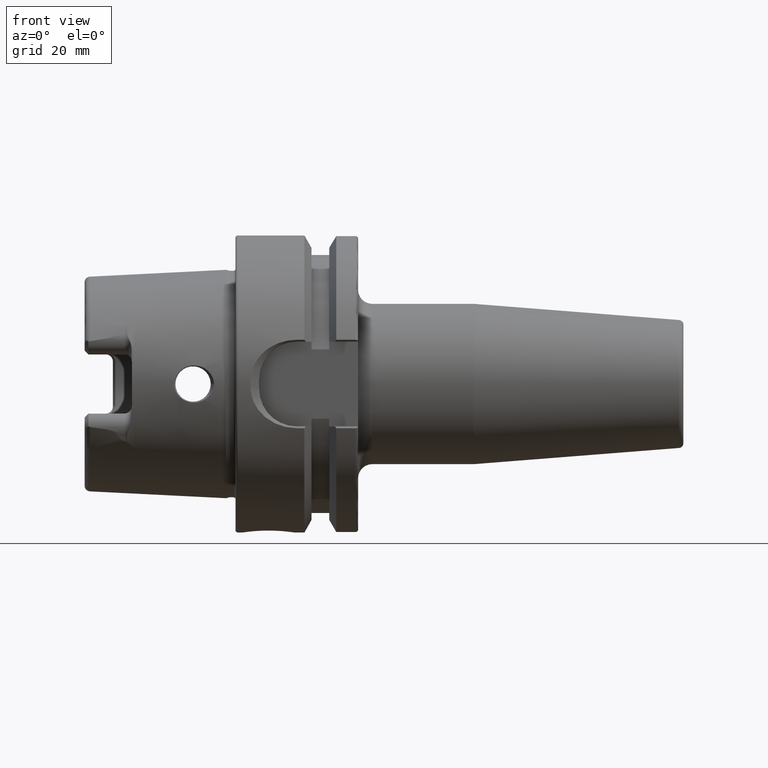
[diagram: clean part render]
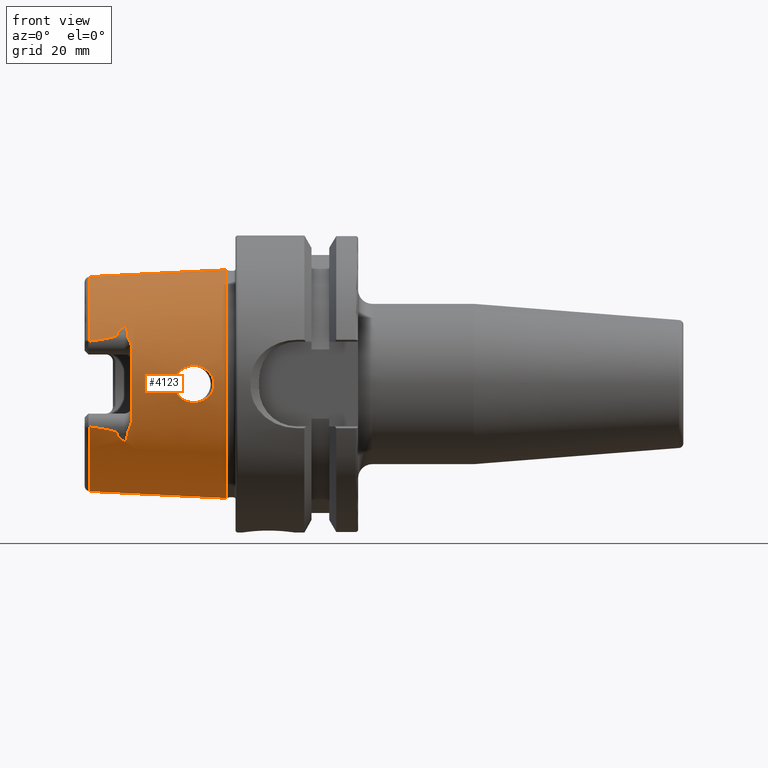
[diagram: same view with one face highlighted and labeled with its STEP entity id]
A machine part, front view. The second image highlights one B-rep face of the part: STEP entity #4123.
In plain terms, the highlighted conical surface has half-angle 2.868 deg.
Its self-contained STEP definition (entity closure, byte-faithful):
#1059=CARTESIAN_POINT('',(-3.086004333271E1,0.E0,0.E0));
#1060=DIRECTION('',(-1.E0,0.E0,0.E0));
#1061=DIRECTION('',(0.E0,0.E0,-1.E0));
#1062=AXIS2_PLACEMENT_3D('',#1059,#1060,#1061);
#1064=CARTESIAN_POINT('',(-3.086004333271E1,-2.086981840766E1,
-9.117659021249E0));
#1065=CARTESIAN_POINT('',(-3.065605186921E1,-2.087009790144E1,
-9.142546682600E0));
#1066=CARTESIAN_POINT('',(-3.026548971795E1,-2.087000011471E1,
-9.191475209956E0));
#1067=CARTESIAN_POINT('',(-2.973365321821E1,-2.086810691684E1,
-9.261644143754E0));
#1068=CARTESIAN_POINT('',(-2.925038551401E1,-2.086470072146E1,
-9.328786458642E0));
#1069=CARTESIAN_POINT('',(-2.880157988887E1,-2.085984936823E1,
-9.394516747198E0));
#1070=CARTESIAN_POINT('',(-2.838907941827E1,-2.085367010435E1,
-9.458361489324E0));
#1071=CARTESIAN_POINT('',(-2.802099682424E1,-2.084652664288E1,
-9.518574595620E0));
#1072=CARTESIAN_POINT('',(-2.767812179380E1,-2.083824707065E1,
-9.577892562152E0));
#1073=CARTESIAN_POINT('',(-2.735909724315E1,-2.082880059047E1,
-9.636540338401E0));
#1074=CARTESIAN_POINT('',(-2.707640752188E1,-2.081875776007E1,
-9.691819563709E0));
#1075=CARTESIAN_POINT('',(-2.681109569702E1,-2.080761261851E1,
-9.747101291047E0));
#1076=CARTESIAN_POINT('',(-2.656858158621E1,-2.079554827328E1,
-9.801340213004E0));
#1077=CARTESIAN_POINT('',(-2.635507856236E1,-2.078317780740E1,
-9.852543087215E0));
#1078=CARTESIAN_POINT('',(-2.614343140954E1,-2.076877229942E1,
-9.907525856621E0));
#1079=CARTESIAN_POINT('',(-2.596459737730E1,-2.075441286803E1,
-9.958294561477E0));
#1080=CARTESIAN_POINT('',(-2.579520406731E1,-2.073852104516E1,
-1.001089413177E1));
#1081=CARTESIAN_POINT('',(-2.563886330149E1,-2.072082009527E1,
-1.006541254284E1));
#1082=CARTESIAN_POINT('',(-2.551094126364E1,-2.070354791350E1,
-1.011550881391E1));
#1083=CARTESIAN_POINT('',(-2.537697699431E1,-2.068112228769E1,
-1.017650437323E1));
#1084=CARTESIAN_POINT('',(-2.527062763811E1,-2.065753992865E1,
-1.023629340194E1));
#1085=CARTESIAN_POINT('',(-2.518213991029E1,-2.063064078682E1,
-1.030035138509E1));
#1086=CARTESIAN_POINT('',(-2.511551447564E1,-2.059710280776E1,
-1.037470366444E1));
#1087=CARTESIAN_POINT('',(-2.509792629022E1,-2.057060375039E1,
-1.042902505095E1));
#1088=CARTESIAN_POINT('',(-2.509832943528E1,-2.055609878966E1,
-1.045749263925E1));
#1090=CARTESIAN_POINT('',(-2.509832943528E1,-2.055609878966E1,
-1.045749263925E1));
#1091=CARTESIAN_POINT('',(-2.509973452206E1,-2.050554446019E1,
-1.055671109738E1));
#1092=CARTESIAN_POINT('',(-2.507065476512E1,-2.040407944593E1,
-1.075584740029E1));
#1093=CARTESIAN_POINT('',(-2.492546543353E1,-2.024884407642E1,
-1.106051396733E1));
#1094=CARTESIAN_POINT('',(-2.468318136842E1,-2.009639154268E1,
-1.135971891163E1));
#1095=CARTESIAN_POINT('',(-2.435973964364E1,-1.995041487066E1,
-1.164621426170E1));
#1096=CARTESIAN_POINT('',(-2.396639941619E1,-1.981051447172E1,
-1.192078425439E1));
#1097=CARTESIAN_POINT('',(-2.366236291861E1,-1.972062082665E1,
-1.209721046657E1));
#1098=CARTESIAN_POINT('',(-2.35E1,-1.967619090430E1,-1.218440909893E1));
#1100=CARTESIAN_POINT('',(-2.35E1,-1.967619090430E1,1.218440909893E1));
#1101=CARTESIAN_POINT('',(-2.366273962512E1,-1.972072391079E1,
1.209700815256E1));
#1102=CARTESIAN_POINT('',(-2.396737226811E1,-1.981081058458E1,
1.192020310018E1));
#1103=CARTESIAN_POINT('',(-2.436114053628E1,-1.995096134710E1,
1.164514174130E1));
#1104=CARTESIAN_POINT('',(-2.468459443081E1,-2.009709754078E1,
1.135833331235E1));
#1105=CARTESIAN_POINT('',(-2.492685004054E1,-2.024992689999E1,
1.105838880642E1));
#1106=CARTESIAN_POINT('',(-2.507099685322E1,-2.040484030157E1,
1.075435413702E1));
#1107=CARTESIAN_POINT('',(-2.509972603515E1,-2.050584981529E1,
1.055611180425E1));
#1108=CARTESIAN_POINT('',(-2.509832943528E1,-2.055609878966E1,
1.045749263925E1));
#1110=CARTESIAN_POINT('',(-3.086004333271E1,-2.086981840766E1,
9.117659021249E0));
#1111=CARTESIAN_POINT('',(-3.065605186921E1,-2.087009790144E1,
9.142546682600E0));
#1112=CARTESIAN_POINT('',(-3.026548971795E1,-2.087000011471E1,
9.191475209956E0));
#1113=CARTESIAN_POINT('',(-2.973365321821E1,-2.086810691684E1,
9.261644143754E0));
#1114=CARTESIAN_POINT('',(-2.925038551401E1,-2.086470072146E1,
9.328786458642E0));
#1115=CARTESIAN_POINT('',(-2.880157988887E1,-2.085984936823E1,
9.394516747198E0));
#1116=CARTESIAN_POINT('',(-2.838907941827E1,-2.085367010435E1,
9.458361489324E0));
#1117=CARTESIAN_POINT('',(-2.802099682424E1,-2.084652664288E1,
9.518574595620E0));
#1118=CARTESIAN_POINT('',(-2.767812179380E1,-2.083824707065E1,
9.577892562152E0));
#1119=CARTESIAN_POINT('',(-2.735909724315E1,-2.082880059047E1,
9.636540338401E0));
#1120=CARTESIAN_POINT('',(-2.707640752188E1,-2.081875776007E1,
9.691819563709E0));
#1121=CARTESIAN_POINT('',(-2.681109569702E1,-2.080761261851E1,
9.747101291047E0));
#1122=CARTESIAN_POINT('',(-2.656858158621E1,-2.079554827328E1,
9.801340213004E0));
#1123=CARTESIAN_POINT('',(-2.635507856236E1,-2.078317780740E1,
9.852543087215E0));
#1124=CARTESIAN_POINT('',(-2.614343140954E1,-2.076877229942E1,
9.907525856621E0));
#1125=CARTESIAN_POINT('',(-2.596459737730E1,-2.075441286803E1,
9.958294561477E0));
#1126=CARTESIAN_POINT('',(-2.579520406731E1,-2.073852104516E1,
1.001089413177E1));
#1127=CARTESIAN_POINT('',(-2.563886330149E1,-2.072082009527E1,
1.006541254284E1));
#1128=CARTESIAN_POINT('',(-2.551094126364E1,-2.070354791350E1,
1.011550881391E1));
#1129=CARTESIAN_POINT('',(-2.537697699431E1,-2.068112228769E1,
1.017650437323E1));
#1130=CARTESIAN_POINT('',(-2.527062763811E1,-2.065753992865E1,
1.023629340194E1));
#1131=CARTESIAN_POINT('',(-2.518213991029E1,-2.063064078682E1,
1.030035138509E1));
#1132=CARTESIAN_POINT('',(-2.511551447564E1,-2.059710280776E1,
1.037470366444E1));
#1133=CARTESIAN_POINT('',(-2.509792629022E1,-2.057060375039E1,
1.042902505095E1));
#1134=CARTESIAN_POINT('',(-2.509832943528E1,-2.055609878966E1,
1.045749263925E1));
#1136=CARTESIAN_POINT('',(-3.086004333271E1,0.E0,0.E0));
#1137=DIRECTION('',(-1.E0,0.E0,0.E0));
#1138=DIRECTION('',(0.E0,-9.163649919573E-1,4.003438540993E-1));
#1139=AXIS2_PLACEMENT_3D('',#1136,#1137,#1138);
#1141=DIRECTION('',(-9.987474310439E-1,-1.043943059125E-10,-5.003567710383E-2));
#1142=VECTOR('',#1141,2.889623723507E1);
#1143=CARTESIAN_POINT('',(-2.000000627352E0,3.013169918385E-9,
2.422041252602E1));
#1144=LINE('',#1143,#1142);
#1145=CARTESIAN_POINT('',(-2.000078966146E0,0.E0,0.E0));
#1146=DIRECTION('',(-1.E0,0.E0,0.E0));
#1147=DIRECTION('',(0.E0,0.E0,-1.E0));
#1148=AXIS2_PLACEMENT_3D('',#1145,#1146,#1147);
#1150=DIRECTION('',(-9.987474310439E-1,1.043954859780E-10,5.003567710383E-2));
#1151=VECTOR('',#1150,2.889623723507E1);
#1152=CARTESIAN_POINT('',(-2.000000627352E0,-3.013171862045E-9,
-2.422041252602E1));
#1153=LINE('',#1152,#1151);
#1154=CARTESIAN_POINT('',(-4.550876813471E0,-2.409262908457E1,0.E0));
#1155=CARTESIAN_POINT('',(-4.550876813471E0,-2.409262908457E1,
-2.877967437564E-1));
#1156=CARTESIAN_POINT('',(-4.618402668122E0,-2.407904026989E1,
-8.400480277036E-1));
#1157=CARTESIAN_POINT('',(-4.894270861234E0,-2.402533951533E1,
-1.607621503292E0));
#1158=CARTESIAN_POINT('',(-5.311993211538E0,-2.394889792202E1,
-2.281051834978E0));
#1159=CARTESIAN_POINT('',(-5.862519901701E0,-2.385721878678E1,
-2.867738815602E0));
#1160=CARTESIAN_POINT('',(-6.525866941490E0,-2.376062455518E1,
-3.345027969698E0));
#1161=CARTESIAN_POINT('',(-7.283123635549E0,-2.366962568370E1,
-3.694964458018E0));
#1162=CARTESIAN_POINT('',(-8.068113572350E0,-2.359725545319E1,
-3.894815234736E0));
#1163=CARTESIAN_POINT('',(-8.870763704734E0,-2.354641057253E1,
-3.954593366443E0));
#1164=CARTESIAN_POINT('',(-9.668430299005E0,-2.351943467091E1,
-3.874115224399E0));
#1165=CARTESIAN_POINT('',(-1.044589907295E1,-2.351586499835E1,
-3.652697425224E0));
#1166=CARTESIAN_POINT('',(-1.117274859870E1,-2.353296697451E1,
-3.292217258769E0));
#1167=CARTESIAN_POINT('',(-1.181517087273E1,-2.356448626338E1,
-2.804326645060E0));
#1168=CARTESIAN_POINT('',(-1.234145757444E1,-2.360166761628E1,
-2.212677597337E0));
#1169=CARTESIAN_POINT('',(-1.273619031472E1,-2.363617974383E1,
-1.537866875102E0));
#1170=CARTESIAN_POINT('',(-1.298600958619E1,-2.366096015370E1,
-7.912407707894E-1));
#1171=CARTESIAN_POINT('',(-1.304439190524E1,-2.366711362744E1,
-2.691253192330E-1));
#1172=CARTESIAN_POINT('',(-1.304439190524E1,-2.366711362744E1,0.E0));
#1174=CARTESIAN_POINT('',(-1.304439190524E1,-2.366711362744E1,0.E0));
#1175=CARTESIAN_POINT('',(-1.304439190524E1,-2.366711362744E1,
2.703037479710E-1));
#1176=CARTESIAN_POINT('',(-1.298550406978E1,-2.366090648148E1,
7.943947598310E-1));
#1177=CARTESIAN_POINT('',(-1.273401403229E1,-2.363596973658E1,
1.542974157060E0));
#1178=CARTESIAN_POINT('',(-1.233736358375E1,-2.360133785537E1,
2.218343463292E0));
#1179=CARTESIAN_POINT('',(-1.181014932937E1,-2.356418192045E1,
2.808926516834E0));
#1180=CARTESIAN_POINT('',(-1.116702224785E1,-2.353275771571E1,
3.295736926792E0));
#1181=CARTESIAN_POINT('',(-1.043963924537E1,-2.351579580285E1,
3.655159652366E0));
#1182=CARTESIAN_POINT('',(-9.660475865824E0,-2.351957664188E1,
3.875690102308E0));
#1183=CARTESIAN_POINT('',(-8.862519366235E0,-2.354681821912E1,
3.954658875556E0));
#1184=CARTESIAN_POINT('',(-8.061144349956E0,-2.359781764260E1,
3.893566864752E0));
#1185=CARTESIAN_POINT('',(-7.278331496707E0,-2.367015194234E1,
3.693151756651E0));
#1186=CARTESIAN_POINT('',(-6.522034984199E0,-2.376113111253E1,
3.342852826910E0));
#1187=CARTESIAN_POINT('',(-5.857697434742E0,-2.385796493762E1,
2.863685030162E0));
#1188=CARTESIAN_POINT('',(-5.307304902799E0,-2.394972134456E1,
2.275049448592E0));
#1189=CARTESIAN_POINT('',(-4.890994728381E0,-2.402596524863E1,
1.600623477393E0));
#1190=CARTESIAN_POINT('',(-4.617587055612E0,-2.407920576001E1,
8.353714922673E-1));
#1191=CARTESIAN_POINT('',(-4.550876813471E0,-2.409262908457E1,
2.859699745206E-1));
#1192=CARTESIAN_POINT('',(-4.550876813471E0,-2.409262908457E1,0.E0));
#1436=CARTESIAN_POINT('',(-2.2E1,0.E0,0.E0));
#1437=DIRECTION('',(1.E0,0.E0,0.E0));
#1438=DIRECTION('',(0.E0,-9.478058907476E-1,3.188479158848E-1));
#1439=AXIS2_PLACEMENT_3D('',#1436,#1437,#1438);
#1460=CARTESIAN_POINT('',(-2.294092122685E1,-2.065240209098E1,
1.050656162214E1));
#1461=CARTESIAN_POINT('',(-2.294111150362E1,-2.070060050173E1,
1.041179857036E1));
#1462=CARTESIAN_POINT('',(-2.291155618279E1,-2.079810368142E1,
1.022013150145E1));
#1463=CARTESIAN_POINT('',(-2.280220882019E1,-2.094364655543E1,
9.931344787062E0));
#1464=CARTESIAN_POINT('',(-2.265591813207E1,-2.109587424253E1,
9.621813423491E0));
#1465=CARTESIAN_POINT('',(-2.248922631050E1,-2.125829077290E1,
9.278752706811E0));
#1466=CARTESIAN_POINT('',(-2.232290478409E1,-2.142677823370E1,
8.905105674939E0));
#1467=CARTESIAN_POINT('',(-2.216473996003E1,-2.160943095424E1,
8.475268221827E0));
#1468=CARTESIAN_POINT('',(-2.203800494772E1,-2.180688467124E1,
7.973400274330E0));
#1469=CARTESIAN_POINT('',(-2.2E1,-2.194020305932E1,7.600470353620E0));
#1470=CARTESIAN_POINT('',(-2.2E1,-2.200658163281E1,7.403153702532E0));
#1472=CARTESIAN_POINT('',(-2.35E1,-1.967619090430E1,1.218440909893E1));
#1473=CARTESIAN_POINT('',(-2.347055544183E1,-1.966813352615E1,
1.220022259394E1));
#1474=CARTESIAN_POINT('',(-2.341241754079E1,-1.966296524110E1,
1.221405587161E1));
#1475=CARTESIAN_POINT('',(-2.332691180913E1,-1.968819645611E1,
1.218153439148E1));
#1476=CARTESIAN_POINT('',(-2.326562915993E1,-1.972716128503E1,
1.212423440230E1));
#1477=CARTESIAN_POINT('',(-2.321457824419E1,-1.977282283767E1,
1.205455891523E1));
#1478=CARTESIAN_POINT('',(-2.317237092190E1,-1.982191871511E1,
1.197776914898E1));
#1479=CARTESIAN_POINT('',(-2.313405569140E1,-1.987650319484E1,
1.189074412018E1));
#1480=CARTESIAN_POINT('',(-2.309893102693E1,-1.993698168379E1,
1.179256148436E1));
#1481=CARTESIAN_POINT('',(-2.306619173465E1,-2.000452504011E1,
1.168092979418E1));
#1482=CARTESIAN_POINT('',(-2.303585792279E1,-2.007988592186E1,
1.155402609307E1));
#1483=CARTESIAN_POINT('',(-2.300835372165E1,-2.016335008984E1,
1.141062860755E1));
#1484=CARTESIAN_POINT('',(-2.298444209752E1,-2.025420771202E1,
1.125113528522E1));
#1485=CARTESIAN_POINT('',(-2.296476112948E1,-2.035248276247E1,
1.107452667370E1));
#1486=CARTESIAN_POINT('',(-2.295058450020E1,-2.045393521043E1,
1.088757448663E1));
#1487=CARTESIAN_POINT('',(-2.294234633039E1,-2.055556823074E1,
1.069534304728E1));
#1488=CARTESIAN_POINT('',(-2.294079499416E1,-2.062042648306E1,
1.056942896863E1));
#1489=CARTESIAN_POINT('',(-2.294092122685E1,-2.065240209098E1,
1.050656162214E1));
#1504=CARTESIAN_POINT('',(-2.2E1,-2.200658163281E1,-7.403153702532E0));
#1505=CARTESIAN_POINT('',(-2.2E1,-2.194041206251E1,-7.599849071691E0));
#1506=CARTESIAN_POINT('',(-2.203791204013E1,-2.180777367988E1,
-7.970791535206E0));
#1507=CARTESIAN_POINT('',(-2.216124332882E1,-2.161431807221E1,
-8.463121846466E0));
#1508=CARTESIAN_POINT('',(-2.231690544694E1,-2.143319349692E1,
-8.890437278107E0));
#1509=CARTESIAN_POINT('',(-2.248243264446E1,-2.126495040771E1,
-9.264341358459E0));
#1510=CARTESIAN_POINT('',(-2.264962455228E1,-2.110208200308E1,
-9.608988754332E0));
#1511=CARTESIAN_POINT('',(-2.279820546886E1,-2.094826699260E1,
-9.922113798161E0));
#1512=CARTESIAN_POINT('',(-2.291041611879E1,-2.080066788900E1,
-1.021509432093E1));
#1513=CARTESIAN_POINT('',(-2.294111504954E1,-2.070149870796E1,
-1.041003260418E1));
#1514=CARTESIAN_POINT('',(-2.294092122685E1,-2.065240209098E1,
-1.050656162214E1));
#1555=CARTESIAN_POINT('',(-2.294092122685E1,-2.065240209098E1,
-1.050656162214E1));
#1556=CARTESIAN_POINT('',(-2.294079811365E1,-2.062121667260E1,
-1.056787537441E1));
#1557=CARTESIAN_POINT('',(-2.294227405167E1,-2.055830300011E1,
-1.069004036703E1));
#1558=CARTESIAN_POINT('',(-2.294989885781E1,-2.046110801024E1,
-1.087409737897E1));
#1559=CARTESIAN_POINT('',(-2.296285463626E1,-2.036461322623E1,
-1.105234197859E1));
#1560=CARTESIAN_POINT('',(-2.298069488493E1,-2.027124871589E1,
-1.122074715811E1));
#1561=CARTESIAN_POINT('',(-2.300253013390E1,-2.018397484429E1,
-1.137466436651E1));
#1562=CARTESIAN_POINT('',(-2.302710385389E1,-2.010504782816E1,
-1.151103285332E1));
#1563=CARTESIAN_POINT('',(-2.305403844285E1,-2.003337429027E1,
-1.163257720670E1));
#1564=CARTESIAN_POINT('',(-2.308354622181E1,-1.996741257225E1,
-1.174248406628E1));
#1565=CARTESIAN_POINT('',(-2.311637460329E1,-1.990558888034E1,
-1.184374034503E1));
#1566=CARTESIAN_POINT('',(-2.315335701227E1,-1.984764484128E1,
-1.193695919151E1));
#1567=CARTESIAN_POINT('',(-2.319380614677E1,-1.979554781478E1,
-1.201922523601E1));
#1568=CARTESIAN_POINT('',(-2.324122285505E1,-1.974731655480E1,
-1.209372623764E1));
#1569=CARTESIAN_POINT('',(-2.329363990695E1,-1.970780502573E1,
-1.215297060557E1));
#1570=CARTESIAN_POINT('',(-2.335697965131E1,-1.967678487987E1,
-1.219707368641E1));
#1571=CARTESIAN_POINT('',(-2.343048235888E1,-1.966376869273E1,
-1.221104561254E1));
#1572=CARTESIAN_POINT('',(-2.347671290010E1,-1.966981848843E1,
-1.219691566928E1));
#1573=CARTESIAN_POINT('',(-2.35E1,-1.967619090430E1,-1.218440909893E1));
#2581=CARTESIAN_POINT('',(-2.000078966146E0,0.E0,-2.422042115892E1));
#2582=CARTESIAN_POINT('',(-2.000078966146E0,0.E0,2.422042115892E1));
#2583=VERTEX_POINT('',#2581);
#2584=VERTEX_POINT('',#2582);
#2696=CARTESIAN_POINT('',(-2.2E1,-2.200658163281E1,-7.403153702532E0));
#2698=VERTEX_POINT('',#2696);
#2699=CARTESIAN_POINT('',(-2.35E1,-1.967619090430E1,-1.218440909893E1));
#2700=VERTEX_POINT('',#2699);
#2702=CARTESIAN_POINT('',(-2.2E1,-2.200658163281E1,7.403153702532E0));
#2704=VERTEX_POINT('',#2702);
#2709=CARTESIAN_POINT('',(-2.35E1,-1.967619090430E1,1.218440909893E1));
#2710=VERTEX_POINT('',#2709);
#2711=VERTEX_POINT('',#1090);
#2712=CARTESIAN_POINT('',(-2.509832943528E1,-2.055609878966E1,
1.045749263925E1));
#2713=VERTEX_POINT('',#2712);
#2714=VERTEX_POINT('',#1489);
#2715=VERTEX_POINT('',#1555);
#2756=CARTESIAN_POINT('',(-3.086004333271E1,0.E0,-2.277456973022E1));
#2757=CARTESIAN_POINT('',(-3.086004333271E1,-2.086981840766E1,
-9.117659021249E0));
#2758=VERTEX_POINT('',#2756);
#2759=VERTEX_POINT('',#2757);
#2762=CARTESIAN_POINT('',(-3.086004333271E1,0.E0,2.277456973022E1));
#2764=VERTEX_POINT('',#2762);
#2766=CARTESIAN_POINT('',(-3.086004333271E1,-2.086981840766E1,
9.117659021249E0));
#2767=VERTEX_POINT('',#2766);
#2851=CARTESIAN_POINT('',(-4.550876813471E0,-2.409262908457E1,0.E0));
#2853=VERTEX_POINT('',#2851);
#2855=CARTESIAN_POINT('',(-1.304439190524E1,-2.366711362744E1,0.E0));
#2857=VERTEX_POINT('',#2855);
#4086=CARTESIAN_POINT('',(-1.643002229390E1,0.E0,0.E0));
#4087=DIRECTION('',(1.E0,0.E0,0.E0));
#4088=DIRECTION('',(0.E0,0.E0,1.E0));
#4089=AXIS2_PLACEMENT_3D('',#4086,#4087,#4088);
#4090=CONICAL_SURFACE('',#4089,2.349749739118E1,2.86805556E0);
#4091=ORIENTED_EDGE('',*,*,#3051,.T.);
#4093=ORIENTED_EDGE('',*,*,#4092,.T.);
#4095=ORIENTED_EDGE('',*,*,#4094,.T.);
#4097=ORIENTED_EDGE('',*,*,#4096,.F.);
#4099=ORIENTED_EDGE('',*,*,#4098,.F.);
#4101=ORIENTED_EDGE('',*,*,#4100,.F.);
#4103=ORIENTED_EDGE('',*,*,#4102,.F.);
#4105=ORIENTED_EDGE('',*,*,#4104,.F.);
#4107=ORIENTED_EDGE('',*,*,#4106,.T.);
#4109=ORIENTED_EDGE('',*,*,#4108,.F.);
#4111=ORIENTED_EDGE('',*,*,#4110,.T.);
#4112=ORIENTED_EDGE('',*,*,#3015,.F.);
#4113=ORIENTED_EDGE('',*,*,#4080,.F.);
#4114=ORIENTED_EDGE('',*,*,#3011,.T.);
#4115=EDGE_LOOP('',(#4091,#4093,#4095,#4097,#4099,#4101,#4103,#4105,#4107,#4109,
#4111,#4112,#4113,#4114));
#4116=FACE_OUTER_BOUND('',#4115,.F.);
#4118=ORIENTED_EDGE('',*,*,#4117,.F.);
#4120=ORIENTED_EDGE('',*,*,#4119,.F.);
#4121=EDGE_LOOP('',(#4118,#4120));
#4122=FACE_BOUND('',#4121,.F.);
#4123=ADVANCED_FACE('',(#4116,#4122),#4090,.T.);
#1063=CIRCLE('',#1062,2.277456973022E1);
#1089=B_SPLINE_CURVE_WITH_KNOTS('',3,(#1064,#1065,#1066,#1067,#1068,#1069,#1070,
#1071,#1072,#1073,#1074,#1075,#1076,#1077,#1078,#1079,#1080,#1081,#1082,#1083,
#1084,#1085,#1086,#1087,#1088),.UNSPECIFIED.,.F.,.F.,(4,1,1,1,1,1,1,1,1,1,1,1,1,
1,1,1,1,1,1,1,1,1,4),(0.E0,4.545454545455E-2,9.090909090909E-2,
1.363636363636E-1,1.818181818182E-1,2.272727272727E-1,2.727272727273E-1,
3.181818181818E-1,3.636363636364E-1,4.090909090909E-1,4.545454545455E-1,5.E-1,
5.454545454545E-1,5.909090909091E-1,6.363636363636E-1,6.818181818182E-1,
7.272727272727E-1,7.727272727273E-1,8.181818181818E-1,8.636363636364E-1,
9.090909090909E-1,9.545454545455E-1,1.E0),.UNSPECIFIED.);
#1099=B_SPLINE_CURVE_WITH_KNOTS('',3,(#1090,#1091,#1092,#1093,#1094,#1095,#1096,
#1097,#1098),.UNSPECIFIED.,.F.,.F.,(4,1,1,1,1,1,4),(0.E0,1.666666666667E-1,
3.333333333333E-1,5.E-1,6.666666666667E-1,8.333333333333E-1,1.E0),
.UNSPECIFIED.);
#1109=B_SPLINE_CURVE_WITH_KNOTS('',3,(#1100,#1101,#1102,#1103,#1104,#1105,#1106,
#1107,#1108),.UNSPECIFIED.,.F.,.F.,(4,1,1,1,1,1,4),(0.E0,1.666666666667E-1,
3.333333333333E-1,5.E-1,6.666666666667E-1,8.333333333333E-1,1.E0),
.UNSPECIFIED.);
#1135=B_SPLINE_CURVE_WITH_KNOTS('',3,(#1110,#1111,#1112,#1113,#1114,#1115,#1116,
#1117,#1118,#1119,#1120,#1121,#1122,#1123,#1124,#1125,#1126,#1127,#1128,#1129,
#1130,#1131,#1132,#1133,#1134),.UNSPECIFIED.,.F.,.F.,(4,1,1,1,1,1,1,1,1,1,1,1,1,
1,1,1,1,1,1,1,1,1,4),(0.E0,4.545454545455E-2,9.090909090909E-2,
1.363636363636E-1,1.818181818182E-1,2.272727272727E-1,2.727272727273E-1,
3.181818181818E-1,3.636363636364E-1,4.090909090909E-1,4.545454545455E-1,5.E-1,
5.454545454545E-1,5.909090909091E-1,6.363636363636E-1,6.818181818182E-1,
7.272727272727E-1,7.727272727273E-1,8.181818181818E-1,8.636363636364E-1,
9.090909090909E-1,9.545454545455E-1,1.E0),.UNSPECIFIED.);
#1140=CIRCLE('',#1139,2.277456973022E1);
#1149=CIRCLE('',#1148,2.422042115892E1);
#1173=B_SPLINE_CURVE_WITH_KNOTS('',3,(#1154,#1155,#1156,#1157,#1158,#1159,#1160,
#1161,#1162,#1163,#1164,#1165,#1166,#1167,#1168,#1169,#1170,#1171,#1172),
.UNSPECIFIED.,.F.,.F.,(4,1,1,1,1,1,1,1,1,1,1,1,1,1,1,1,4),(0.E0,6.25E-2,1.25E-1,
1.875E-1,2.5E-1,3.125E-1,3.75E-1,4.375E-1,5.E-1,5.625E-1,6.25E-1,6.875E-1,
7.5E-1,8.125E-1,8.75E-1,9.375E-1,1.E0),.UNSPECIFIED.);
#1193=B_SPLINE_CURVE_WITH_KNOTS('',3,(#1174,#1175,#1176,#1177,#1178,#1179,#1180,
#1181,#1182,#1183,#1184,#1185,#1186,#1187,#1188,#1189,#1190,#1191,#1192),
.UNSPECIFIED.,.F.,.F.,(4,1,1,1,1,1,1,1,1,1,1,1,1,1,1,1,4),(0.E0,6.25E-2,1.25E-1,
1.875E-1,2.5E-1,3.125E-1,3.75E-1,4.375E-1,5.E-1,5.625E-1,6.25E-1,6.875E-1,
7.5E-1,8.125E-1,8.75E-1,9.375E-1,1.E0),.UNSPECIFIED.);
#1440=CIRCLE('',#1439,2.321844783582E1);
#1471=B_SPLINE_CURVE_WITH_KNOTS('',3,(#1460,#1461,#1462,#1463,#1464,#1465,#1466,
#1467,#1468,#1469,#1470),.UNSPECIFIED.,.F.,.F.,(4,1,1,1,1,1,1,1,4),(0.E0,
1.25E-1,2.5E-1,3.75E-1,5.E-1,6.25E-1,7.5E-1,8.75E-1,1.E0),.UNSPECIFIED.);
#1490=B_SPLINE_CURVE_WITH_KNOTS('',3,(#1472,#1473,#1474,#1475,#1476,#1477,#1478,
#1479,#1480,#1481,#1482,#1483,#1484,#1485,#1486,#1487,#1488,#1489),
.UNSPECIFIED.,.F.,.F.,(4,1,1,1,1,1,1,1,1,1,1,1,1,1,1,4),(0.E0,6.666666666667E-2,
1.333333333333E-1,2.E-1,2.666666666667E-1,3.333333333333E-1,4.E-1,
4.666666666667E-1,5.333333333333E-1,6.E-1,6.666666666667E-1,7.333333333333E-1,
8.E-1,8.666666666667E-1,9.333333333333E-1,1.E0),.UNSPECIFIED.);
#1515=B_SPLINE_CURVE_WITH_KNOTS('',3,(#1504,#1505,#1506,#1507,#1508,#1509,#1510,
#1511,#1512,#1513,#1514),.UNSPECIFIED.,.F.,.F.,(4,1,1,1,1,1,1,1,4),(0.E0,
1.25E-1,2.5E-1,3.75E-1,5.E-1,6.25E-1,7.5E-1,8.75E-1,1.E0),.UNSPECIFIED.);
#1574=B_SPLINE_CURVE_WITH_KNOTS('',3,(#1555,#1556,#1557,#1558,#1559,#1560,#1561,
#1562,#1563,#1564,#1565,#1566,#1567,#1568,#1569,#1570,#1571,#1572,#1573),
.UNSPECIFIED.,.F.,.F.,(4,1,1,1,1,1,1,1,1,1,1,1,1,1,1,1,4),(0.E0,6.25E-2,1.25E-1,
1.875E-1,2.5E-1,3.125E-1,3.75E-1,4.375E-1,5.E-1,5.625E-1,6.25E-1,6.875E-1,
7.5E-1,8.125E-1,8.75E-1,9.375E-1,1.E0),.UNSPECIFIED.);
#3011=EDGE_CURVE('',#2583,#2758,#1153,.T.);
#3015=EDGE_CURVE('',#2584,#2764,#1144,.T.);
#3051=EDGE_CURVE('',#2758,#2759,#1063,.T.);
#4080=EDGE_CURVE('',#2583,#2584,#1149,.T.);
#4092=EDGE_CURVE('',#2759,#2711,#1089,.T.);
#4094=EDGE_CURVE('',#2711,#2700,#1099,.T.);
#4096=EDGE_CURVE('',#2715,#2700,#1574,.T.);
#4098=EDGE_CURVE('',#2698,#2715,#1515,.T.);
#4100=EDGE_CURVE('',#2704,#2698,#1440,.T.);
#4102=EDGE_CURVE('',#2714,#2704,#1471,.T.);
#4104=EDGE_CURVE('',#2710,#2714,#1490,.T.);
#4106=EDGE_CURVE('',#2710,#2713,#1109,.T.);
#4108=EDGE_CURVE('',#2767,#2713,#1135,.T.);
#4110=EDGE_CURVE('',#2767,#2764,#1140,.T.);
#4117=EDGE_CURVE('',#2853,#2857,#1173,.T.);
#4119=EDGE_CURVE('',#2857,#2853,#1193,.T.);